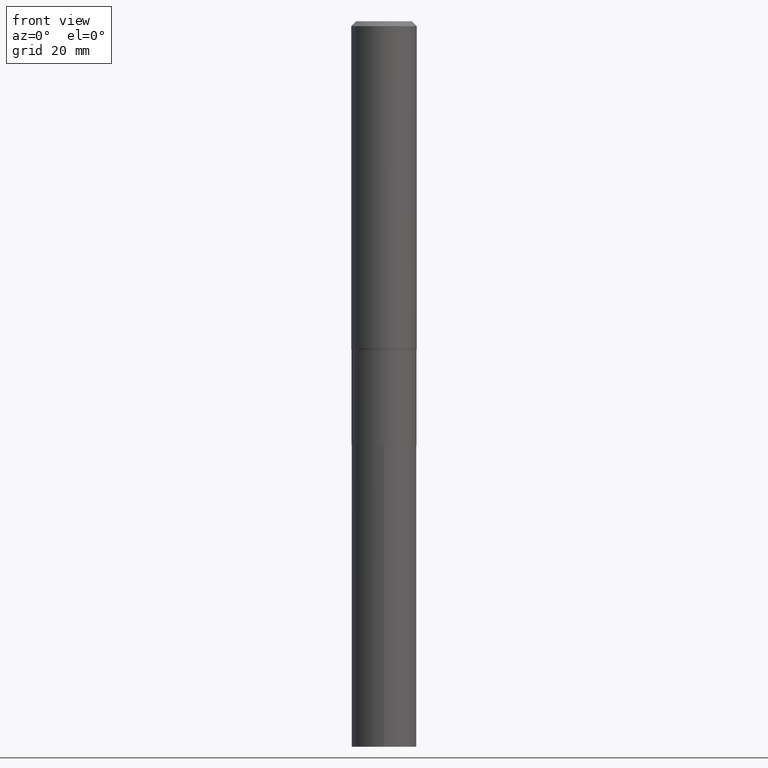
[diagram: clean part render]
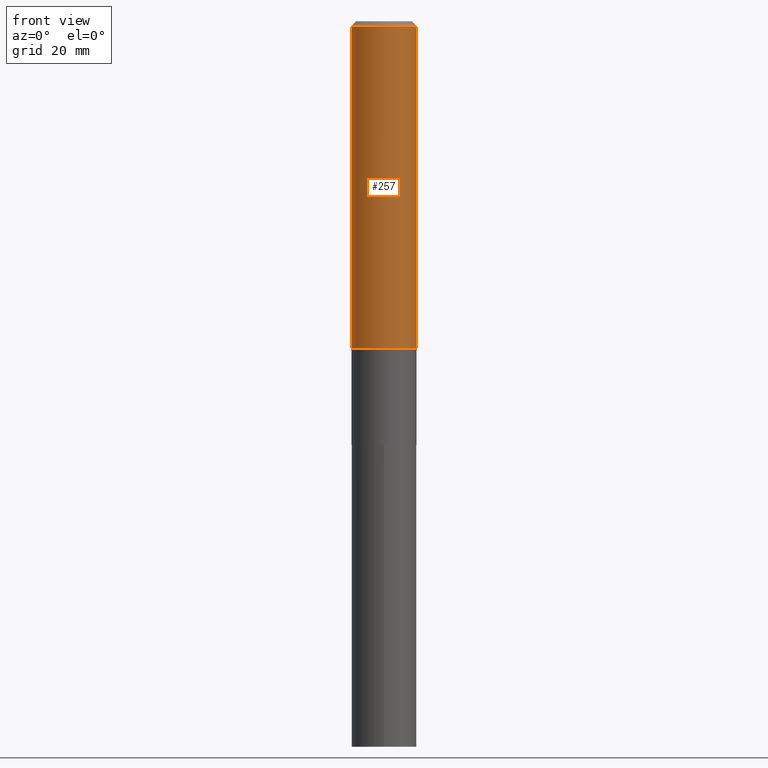
[diagram: same view with one face highlighted and labeled with its STEP entity id]
A machine part, front view. The second image highlights one B-rep face of the part: STEP entity #257.
In plain terms, the highlighted cylindrical surface (edge-blend (fillet) strip) has radius 7.0002 mm, axis along (-0, 0, 1).
Its self-contained STEP definition (entity closure, byte-faithful):
#8 = EDGE_CURVE ( 'NONE', #107, #31, #197, .T. ) ;
#15 = CARTESIAN_POINT ( 'NONE',  ( 0.2756000000000001782, -1.924504513970336532E-15, 1.343874319409360828E-29 ) ) ;
#19 = CIRCLE ( 'NONE', #255, 0.2756000000000000116 ) ;
#31 = VERTEX_POINT ( 'NONE', #451 ) ;
#32 = DIRECTION ( 'NONE',  ( -2.445468806185136597E-29, 3.491481338843145583E-15, 1.000000000000000000 ) ) ;
#46 = EDGE_LOOP ( 'NONE', ( #101, #84, #281, #393 ) ) ;
#57 = CARTESIAN_POINT ( 'NONE',  ( 0.2756000000000003447, -1.153298364311193009E-14, -2.751977798720021351 ) ) ;
#71 = FACE_OUTER_BOUND ( 'NONE', #46, .T. ) ;
#84 = ORIENTED_EDGE ( 'NONE', *, *, #285, .T. ) ;
#101 = ORIENTED_EDGE ( 'NONE', *, *, #273, .F. ) ;
#103 = DIRECTION ( 'NONE',  ( 1.000000000000000000, -6.982962677686267499E-15, 4.876176775795935793E-29 ) ) ;
#105 = AXIS2_PLACEMENT_3D ( 'NONE', #398, #32, #428 ) ;
#107 = VERTEX_POINT ( 'NONE', #57 ) ;
#116 = DIRECTION ( 'NONE',  ( -2.445468806185136597E-29, 3.491481338843145583E-15, 1.000000000000000000 ) ) ;
#152 = VERTEX_POINT ( 'NONE', #346 ) ;
#169 = VECTOR ( 'NONE', #339, 39.37007874015748143 ) ;
#197 = LINE ( 'NONE', #15, #169 ) ;
#218 = DIRECTION ( 'NONE',  ( -2.445468806185136877E-29, 3.491481338843145188E-15, 1.000000000000000000 ) ) ;
#232 = VERTEX_POINT ( 'NONE', #326 ) ;
#255 = AXIS2_PLACEMENT_3D ( 'NONE', #372, #116, #337 ) ;
#257 = ADVANCED_FACE ( 'NONE', ( #71 ), #298, .T. ) ;
#264 = LINE ( 'NONE', #462, #383 ) ;
#273 = EDGE_CURVE ( 'NONE', #232, #152, #264, .T. ) ;
#281 = ORIENTED_EDGE ( 'NONE', *, *, #8, .T. ) ;
#285 = EDGE_CURVE ( 'NONE', #232, #107, #367, .T. ) ;
#298 = CYLINDRICAL_SURFACE ( 'NONE', #440, 0.2756000000000001782 ) ;
#326 = CARTESIAN_POINT ( 'NONE',  ( -0.2756000000000003447, -7.650223349386753813E-15, -2.751977798720021351 ) ) ;
#337 = DIRECTION ( 'NONE',  ( 1.000000000000000000, -6.982962677686267499E-15, 0.000000000000000000 ) ) ;
#339 = DIRECTION ( 'NONE',  ( -2.445468806185136877E-29, 3.491481338843145188E-15, 1.000000000000000000 ) ) ;
#346 = CARTESIAN_POINT ( 'NONE',  ( -0.2756000000000000116, -2.918152704089846015E-15, -0.04134000000000026542 ) ) ;
#367 = CIRCLE ( 'NONE', #105, 0.2756000000000003447 ) ;
#372 = CARTESIAN_POINT ( 'NONE',  ( 1.010956804476942048E-30, -1.443378385477765563E-16, -0.04134000000000026542 ) ) ;
#383 = VECTOR ( 'NONE', #218, 39.37007874015748143 ) ;
#393 = ORIENTED_EDGE ( 'NONE', *, *, #444, .F. ) ;
#398 = CARTESIAN_POINT ( 'NONE',  ( 6.729875862083849729E-29, -9.608479129141591981E-15, -2.751977798720021351 ) ) ;
#428 = DIRECTION ( 'NONE',  ( 1.000000000000000000, -6.982962677686264344E-15, 0.000000000000000000 ) ) ;
#429 = CARTESIAN_POINT ( 'NONE',  ( 0.000000000000000000, 0.000000000000000000, 0.000000000000000000 ) ) ;
#440 = AXIS2_PLACEMENT_3D ( 'NONE', #429, #466, #103 ) ;
#444 = EDGE_CURVE ( 'NONE', #152, #31, #19, .T. ) ;
#451 = CARTESIAN_POINT ( 'NONE',  ( 0.2756000000000000116, -2.068842352518111732E-15, -0.04134000000000026542 ) ) ;
#462 = CARTESIAN_POINT ( 'NONE',  ( -0.2756000000000001782, 1.958255779754837378E-15, -1.355658510874252848E-29 ) ) ;
#466 = DIRECTION ( 'NONE',  ( -2.445468806185136597E-29, 3.491481338843145583E-15, 1.000000000000000000 ) ) ;